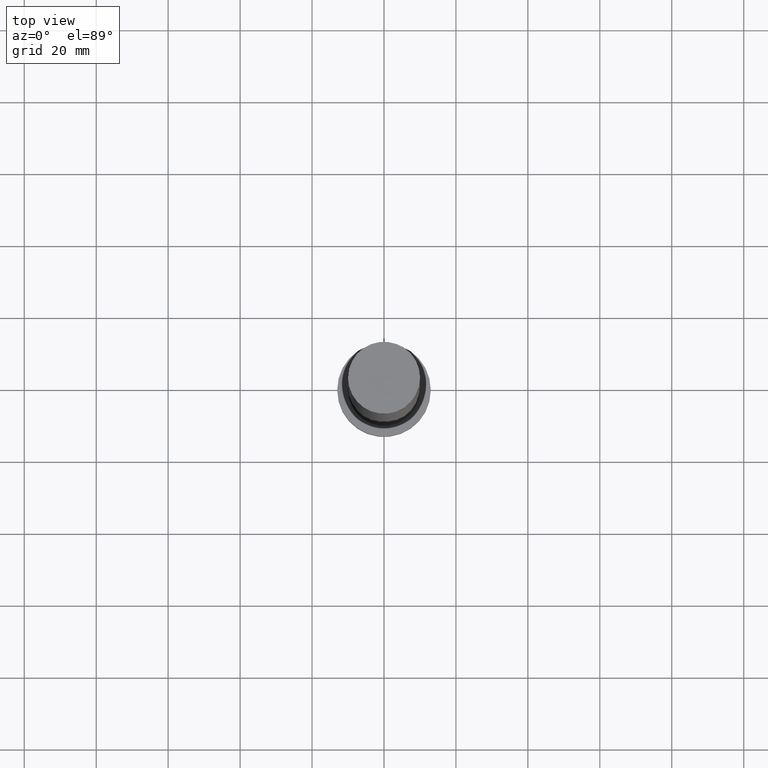
[diagram: clean part render]
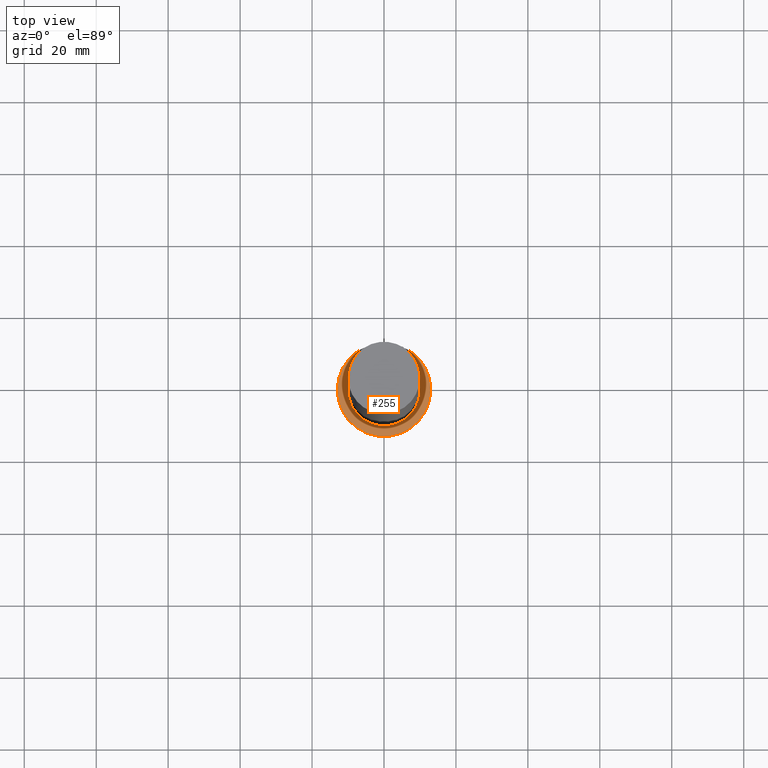
[diagram: same view with one face highlighted and labeled with its STEP entity id]
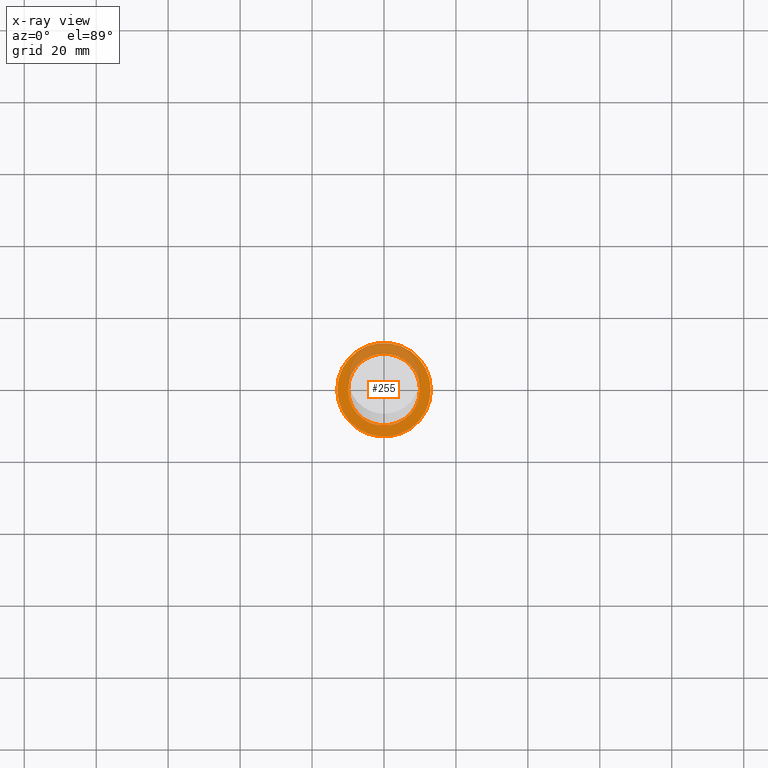
[diagram: x-ray of the same camera — body ghosted, the highlighted face saturated]
A machine part, top view. The second image highlights one B-rep face of the part: STEP entity #255.
The next image is the same camera in x-ray: the body ghosted, the highlighted face saturated — about 30% of this face is hidden behind the body in this view.
In plain terms, the highlighted planar face has unit normal (0, 0, 1).
Its self-contained STEP definition (entity closure, byte-faithful):
#1 = CARTESIAN_POINT ( 'NONE',  ( 13.00000000000000178, 1.592040838891559293E-15, 8.000000000000000000 ) ) ;
#8 = CARTESIAN_POINT ( 'NONE',  ( 0.000000000000000000, 0.000000000000000000, 8.000000000000000000 ) ) ;
#9 = EDGE_LOOP ( 'NONE', ( #173, #188 ) ) ;
#10 = AXIS2_PLACEMENT_3D ( 'NONE', #233, #16, #197 ) ;
#16 = DIRECTION ( 'NONE',  ( 0.000000000000000000, 0.000000000000000000, 1.000000000000000000 ) ) ;
#18 = AXIS2_PLACEMENT_3D ( 'NONE', #164, #159, #101 ) ;
#35 = EDGE_CURVE ( 'NONE', #111, #250, #126, .T. ) ;
#49 = DIRECTION ( 'NONE',  ( 1.000000000000000000, 0.000000000000000000, 0.000000000000000000 ) ) ;
#60 = EDGE_CURVE ( 'NONE', #250, #111, #185, .T. ) ;
#74 = EDGE_LOOP ( 'NONE', ( #155, #177 ) ) ;
#77 = DIRECTION ( 'NONE',  ( 0.000000000000000000, 0.000000000000000000, 1.000000000000000000 ) ) ;
#78 = CARTESIAN_POINT ( 'NONE',  ( -10.00000000000000000, 0.000000000000000000, 8.000000000000000000 ) ) ;
#81 = AXIS2_PLACEMENT_3D ( 'NONE', #8, #230, #210 ) ;
#88 = EDGE_CURVE ( 'NONE', #209, #193, #151, .T. ) ;
#99 = FACE_OUTER_BOUND ( 'NONE', #74, .T. ) ;
#101 = DIRECTION ( 'NONE',  ( 1.000000000000000000, 0.000000000000000000, 0.000000000000000000 ) ) ;
#111 = VERTEX_POINT ( 'NONE', #184 ) ;
#126 = CIRCLE ( 'NONE', #158, 13.00000000000000178 ) ;
#141 = CARTESIAN_POINT ( 'NONE',  ( 0.000000000000000000, 0.000000000000000000, 8.000000000000000000 ) ) ;
#150 = AXIS2_PLACEMENT_3D ( 'NONE', #141, #77, #218 ) ;
#151 = CIRCLE ( 'NONE', #18, 10.00000000000000000 ) ;
#155 = ORIENTED_EDGE ( 'NONE', *, *, #35, .T. ) ;
#158 = AXIS2_PLACEMENT_3D ( 'NONE', #192, #244, #49 ) ;
#159 = DIRECTION ( 'NONE',  ( 0.000000000000000000, 0.000000000000000000, 1.000000000000000000 ) ) ;
#162 = PLANE ( 'NONE',  #150 ) ;
#164 = CARTESIAN_POINT ( 'NONE',  ( 0.000000000000000000, 0.000000000000000000, 8.000000000000000000 ) ) ;
#173 = ORIENTED_EDGE ( 'NONE', *, *, #217, .F. ) ;
#177 = ORIENTED_EDGE ( 'NONE', *, *, #60, .T. ) ;
#184 = CARTESIAN_POINT ( 'NONE',  ( -13.00000000000000178, 0.000000000000000000, 8.000000000000000000 ) ) ;
#185 = CIRCLE ( 'NONE', #81, 13.00000000000000178 ) ;
#188 = ORIENTED_EDGE ( 'NONE', *, *, #88, .F. ) ;
#192 = CARTESIAN_POINT ( 'NONE',  ( 0.000000000000000000, 0.000000000000000000, 8.000000000000000000 ) ) ;
#193 = VERTEX_POINT ( 'NONE', #78 ) ;
#197 = DIRECTION ( 'NONE',  ( 1.000000000000000000, 0.000000000000000000, 0.000000000000000000 ) ) ;
#209 = VERTEX_POINT ( 'NONE', #253 ) ;
#210 = DIRECTION ( 'NONE',  ( 1.000000000000000000, 0.000000000000000000, 0.000000000000000000 ) ) ;
#217 = EDGE_CURVE ( 'NONE', #193, #209, #220, .T. ) ;
#218 = DIRECTION ( 'NONE',  ( 1.000000000000000000, 0.000000000000000000, -0.000000000000000000 ) ) ;
#220 = CIRCLE ( 'NONE', #10, 10.00000000000000000 ) ;
#230 = DIRECTION ( 'NONE',  ( 0.000000000000000000, 0.000000000000000000, 1.000000000000000000 ) ) ;
#233 = CARTESIAN_POINT ( 'NONE',  ( 0.000000000000000000, 0.000000000000000000, 8.000000000000000000 ) ) ;
#235 = FACE_BOUND ( 'NONE', #9, .T. ) ;
#244 = DIRECTION ( 'NONE',  ( 0.000000000000000000, 0.000000000000000000, 1.000000000000000000 ) ) ;
#250 = VERTEX_POINT ( 'NONE', #1 ) ;
#253 = CARTESIAN_POINT ( 'NONE',  ( 10.00000000000000000, 1.224646799147353256E-15, 8.000000000000000000 ) ) ;
#255 = ADVANCED_FACE ( 'NONE', ( #235, #99 ), #162, .T. ) ;